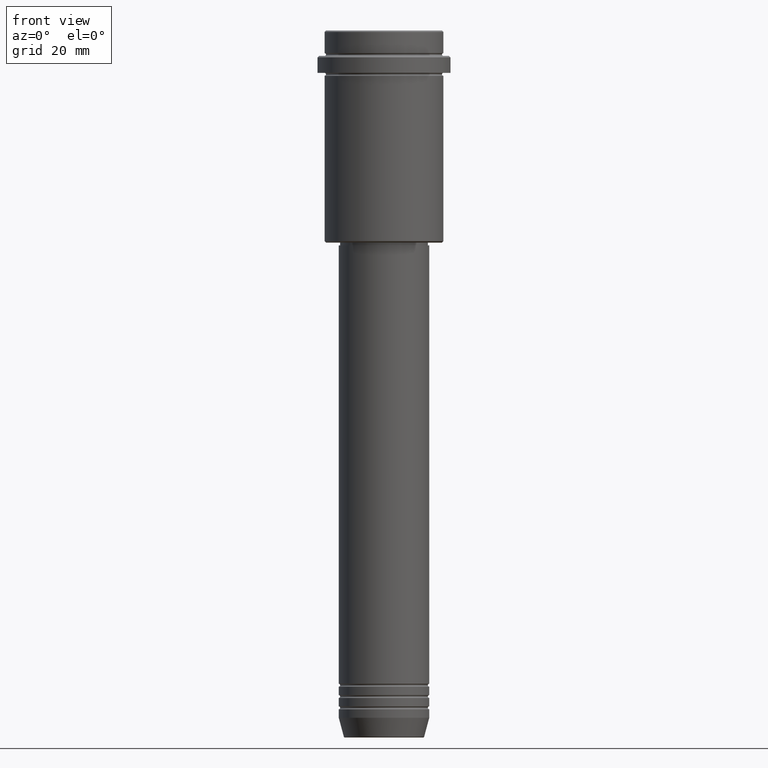
[diagram: clean part render]
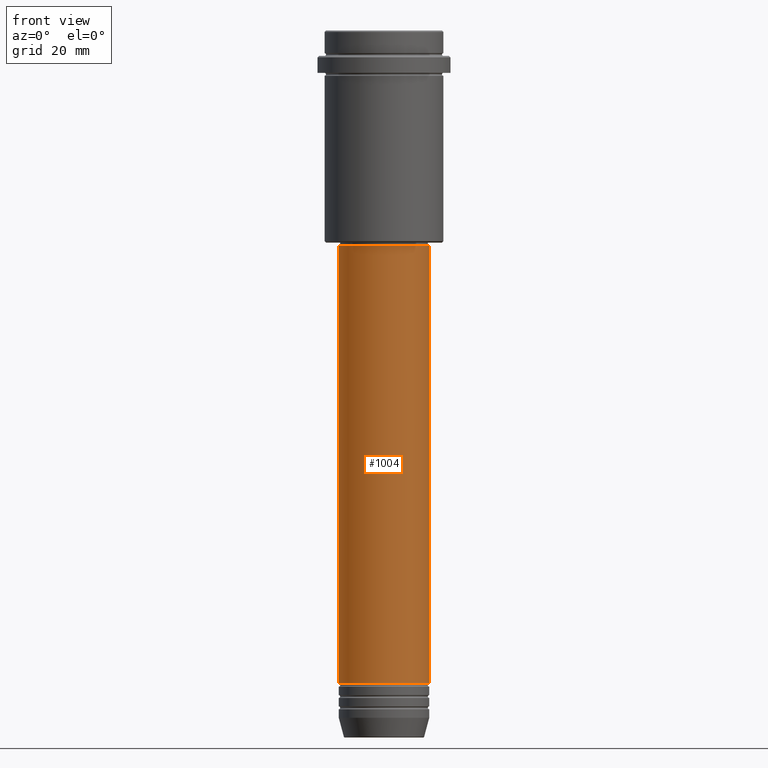
[diagram: same view with one face highlighted and labeled with its STEP entity id]
A machine part, front view. The second image highlights one B-rep face of the part: STEP entity #1004.
In plain terms, the highlighted cylindrical surface (partial cylindrical patch) has radius 16 mm, axis along (-0, -0, 1).
Its self-contained STEP definition (entity closure, byte-faithful):
#32 = CARTESIAN_POINT ( 'NONE',  ( 0.000000000000000000, 0.000000000000000000, -230.9999999999998863 ) ) ;
#117 = CARTESIAN_POINT ( 'NONE',  ( 0.000000000000000000, 0.000000000000000000, -76.00000000000001421 ) ) ;
#164 = ORIENTED_EDGE ( 'NONE', *, *, #530, .T. ) ;
#186 = CYLINDRICAL_SURFACE ( 'NONE', #1363, 16.00000000000000000 ) ;
#209 = DIRECTION ( 'NONE',  ( 1.000000000000000000, 0.000000000000000000, 0.000000000000000000 ) ) ;
#273 = CARTESIAN_POINT ( 'NONE',  ( 16.00000000000000000, 0.000000000000000000, -230.9999999999998863 ) ) ;
#296 = VERTEX_POINT ( 'NONE', #428 ) ;
#315 = AXIS2_PLACEMENT_3D ( 'NONE', #117, #962, #209 ) ;
#339 = CARTESIAN_POINT ( 'NONE',  ( -16.00000000000000000, 1.959434878635765131E-15, -230.9999999999998863 ) ) ;
#340 = EDGE_LOOP ( 'NONE', ( #444, #1067, #164, #450 ) ) ;
#352 = CARTESIAN_POINT ( 'NONE',  ( 16.00000000000000000, 0.000000000000000000, 0.000000000000000000 ) ) ;
#428 = CARTESIAN_POINT ( 'NONE',  ( 16.00000000000000355, 0.000000000000000000, -76.00000000000001421 ) ) ;
#432 = VECTOR ( 'NONE', #466, 1000.000000000000000 ) ;
#444 = ORIENTED_EDGE ( 'NONE', *, *, #1150, .F. ) ;
#450 = ORIENTED_EDGE ( 'NONE', *, *, #1025, .F. ) ;
#466 = DIRECTION ( 'NONE',  ( -0.000000000000000000, -0.000000000000000000, 1.000000000000000000 ) ) ;
#479 = DIRECTION ( 'NONE',  ( -0.000000000000000000, -0.000000000000000000, 1.000000000000000000 ) ) ;
#510 = EDGE_CURVE ( 'NONE', #724, #1255, #1070, .T. ) ;
#530 = EDGE_CURVE ( 'NONE', #1255, #296, #905, .T. ) ;
#572 = CARTESIAN_POINT ( 'NONE',  ( -16.00000000000000355, 1.959434878635765526E-15, -76.00000000000001421 ) ) ;
#594 = DIRECTION ( 'NONE',  ( -0.000000000000000000, -0.000000000000000000, 1.000000000000000000 ) ) ;
#685 = DIRECTION ( 'NONE',  ( 1.000000000000000000, 0.000000000000000000, 0.000000000000000000 ) ) ;
#724 = VERTEX_POINT ( 'NONE', #339 ) ;
#753 = VERTEX_POINT ( 'NONE', #572 ) ;
#861 = FACE_OUTER_BOUND ( 'NONE', #340, .T. ) ;
#905 = LINE ( 'NONE', #352, #977 ) ;
#930 = CIRCLE ( 'NONE', #315, 16.00000000000000355 ) ;
#962 = DIRECTION ( 'NONE',  ( -0.000000000000000000, -0.000000000000000000, 1.000000000000000000 ) ) ;
#968 = DIRECTION ( 'NONE',  ( -0.000000000000000000, -0.000000000000000000, 1.000000000000000000 ) ) ;
#977 = VECTOR ( 'NONE', #594, 1000.000000000000000 ) ;
#986 = CARTESIAN_POINT ( 'NONE',  ( -16.00000000000000000, 1.959434878635765131E-15, 0.000000000000000000 ) ) ;
#1004 = ADVANCED_FACE ( 'NONE', ( #861 ), #186, .T. ) ;
#1025 = EDGE_CURVE ( 'NONE', #753, #296, #930, .T. ) ;
#1067 = ORIENTED_EDGE ( 'NONE', *, *, #510, .T. ) ;
#1070 = CIRCLE ( 'NONE', #1274, 16.00000000000000000 ) ;
#1150 = EDGE_CURVE ( 'NONE', #724, #753, #1347, .T. ) ;
#1255 = VERTEX_POINT ( 'NONE', #273 ) ;
#1274 = AXIS2_PLACEMENT_3D ( 'NONE', #32, #479, #685 ) ;
#1347 = LINE ( 'NONE', #986, #432 ) ;
#1363 = AXIS2_PLACEMENT_3D ( 'NONE', #1416, #968, #1401 ) ;
#1401 = DIRECTION ( 'NONE',  ( 1.000000000000000000, 0.000000000000000000, 0.000000000000000000 ) ) ;
#1416 = CARTESIAN_POINT ( 'NONE',  ( 0.000000000000000000, 0.000000000000000000, 0.000000000000000000 ) ) ;